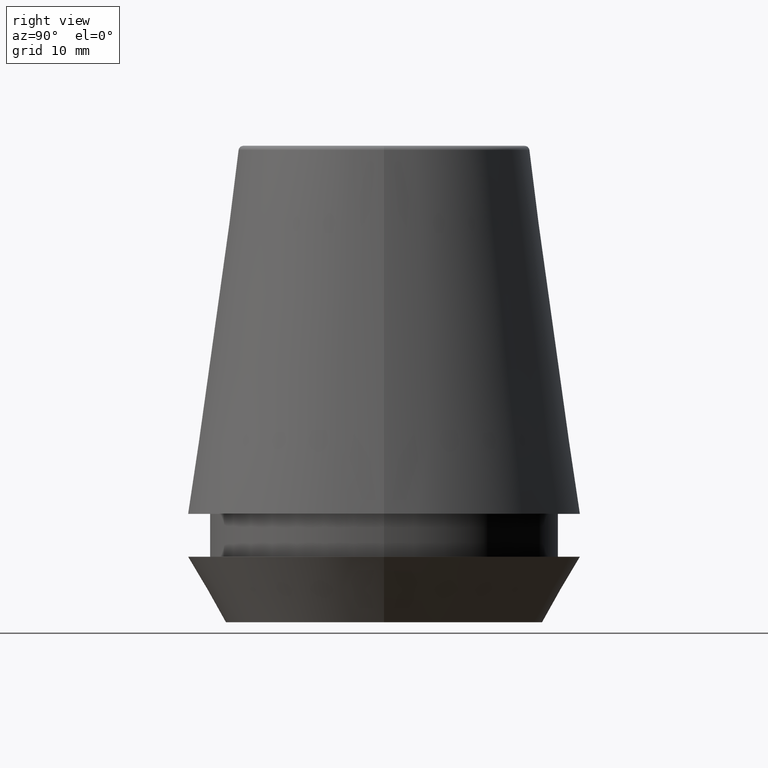
[diagram: clean part render]
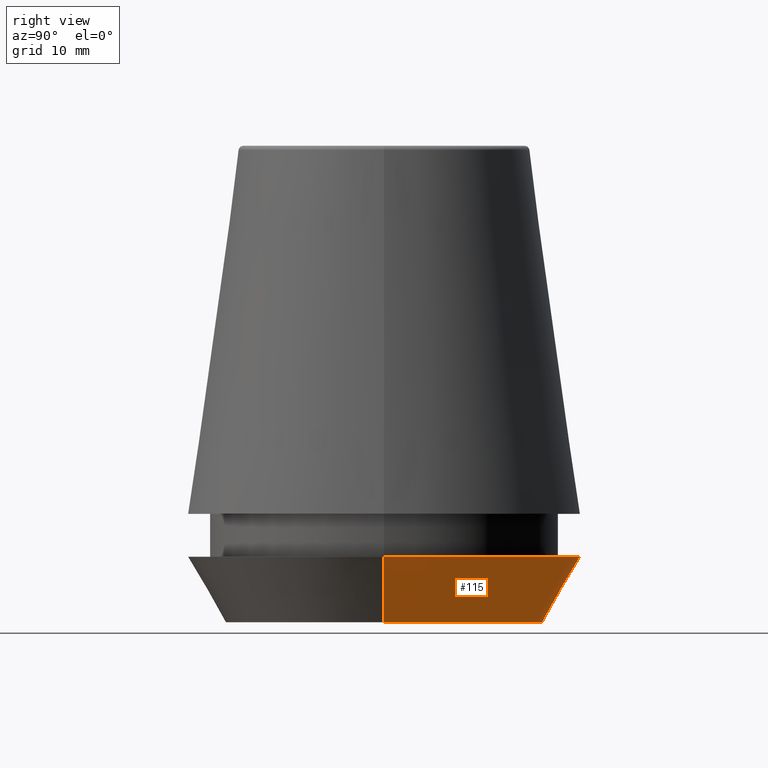
[diagram: same view with one face highlighted and labeled with its STEP entity id]
A machine part, right view. The second image highlights one B-rep face of the part: STEP entity #115.
In plain terms, the highlighted conical surface has half-angle 30 deg.
Its self-contained STEP definition (entity closure, byte-faithful):
#15 = CARTESIAN_POINT ( 'NONE',  ( 0.0000000000000000000, 0.0000000000000000000, 0.0000000000000000000 ) ) ;
#18 = CARTESIAN_POINT ( 'NONE',  ( 13.32457351945710200, 0.0000000000000000000, 0.0000000000000000000 ) ) ;
#19 = EDGE_CURVE ( 'NONE', #27, #129, #202, .T. ) ;
#22 = EDGE_CURVE ( 'NONE', #27, #234, #117, .T. ) ;
#27 = VERTEX_POINT ( 'NONE', #106 ) ;
#35 = CARTESIAN_POINT ( 'NONE',  ( 0.0000000000000000000, 0.0000000000000000000, 0.0000000000000000000 ) ) ;
#36 = DIRECTION ( 'NONE',  ( 1.000000000000000000, 0.0000000000000000000, 0.0000000000000000000 ) ) ;
#37 = VECTOR ( 'NONE', #49, 999.9999999999998900 ) ;
#41 = EDGE_CURVE ( 'NONE', #234, #148, #266, .T. ) ;
#49 = DIRECTION ( 'NONE',  ( 0.4999999999999947300, 0.0000000000000000000, 0.8660254037844418200 ) ) ;
#87 = ORIENTED_EDGE ( 'NONE', *, *, #313, .T. ) ;
#98 = DIRECTION ( 'NONE',  ( -0.0000000000000000000, -0.0000000000000000000, 1.000000000000000000 ) ) ;
#106 = CARTESIAN_POINT ( 'NONE',  ( 13.32457351945710200, 0.0000000000000000000, 0.0000000000000000000 ) ) ;
#107 = AXIS2_PLACEMENT_3D ( 'NONE', #15, #259, #169 ) ;
#115 = ADVANCED_FACE ( 'NONE', ( #177 ), #249, .T. ) ;
#117 = LINE ( 'NONE', #18, #37 ) ;
#129 = VERTEX_POINT ( 'NONE', #378 ) ;
#148 = VERTEX_POINT ( 'NONE', #286 ) ;
#164 = DIRECTION ( 'NONE',  ( -0.4999999999999947300, 6.123233995736700700E-017, 0.8660254037844418200 ) ) ;
#169 = DIRECTION ( 'NONE',  ( 1.000000000000000000, 0.0000000000000000000, 0.0000000000000000000 ) ) ;
#177 = FACE_OUTER_BOUND ( 'NONE', #248, .T. ) ;
#202 = CIRCLE ( 'NONE', #107, 13.32457351945710200 ) ;
#234 = VERTEX_POINT ( 'NONE', #235 ) ;
#235 = CARTESIAN_POINT ( 'NONE',  ( 16.50000000000000000, 0.0000000000000000000, 5.500000000000005300 ) ) ;
#247 = DIRECTION ( 'NONE',  ( 1.000000000000000000, 0.0000000000000000000, 0.0000000000000000000 ) ) ;
#248 = EDGE_LOOP ( 'NONE', ( #350, #87, #310, #373 ) ) ;
#249 = CONICAL_SURFACE ( 'NONE', #262, 13.32457351945710200, 0.5235987755982927100 ) ;
#259 = DIRECTION ( 'NONE',  ( -0.0000000000000000000, -0.0000000000000000000, 1.000000000000000000 ) ) ;
#262 = AXIS2_PLACEMENT_3D ( 'NONE', #35, #98, #247 ) ;
#266 = CIRCLE ( 'NONE', #377, 16.50000000000000000 ) ;
#286 = CARTESIAN_POINT ( 'NONE',  ( -16.50000000000000000, 2.020667218593133100E-015, 5.500000000000005300 ) ) ;
#289 = LINE ( 'NONE', #363, #359 ) ;
#310 = ORIENTED_EDGE ( 'NONE', *, *, #41, .F. ) ;
#313 = EDGE_CURVE ( 'NONE', #129, #148, #289, .T. ) ;
#322 = CARTESIAN_POINT ( 'NONE',  ( 0.0000000000000000000, 0.0000000000000000000, 5.500000000000005300 ) ) ;
#350 = ORIENTED_EDGE ( 'NONE', *, *, #19, .T. ) ;
#356 = DIRECTION ( 'NONE',  ( -0.0000000000000000000, -0.0000000000000000000, 1.000000000000000000 ) ) ;
#359 = VECTOR ( 'NONE', #164, 999.9999999999998900 ) ;
#363 = CARTESIAN_POINT ( 'NONE',  ( -13.32457351945710200, 1.631789631060672300E-015, 0.0000000000000000000 ) ) ;
#373 = ORIENTED_EDGE ( 'NONE', *, *, #22, .F. ) ;
#377 = AXIS2_PLACEMENT_3D ( 'NONE', #322, #356, #36 ) ;
#378 = CARTESIAN_POINT ( 'NONE',  ( -13.32457351945710200, 1.826228424826902600E-015, 0.0000000000000000000 ) ) ;